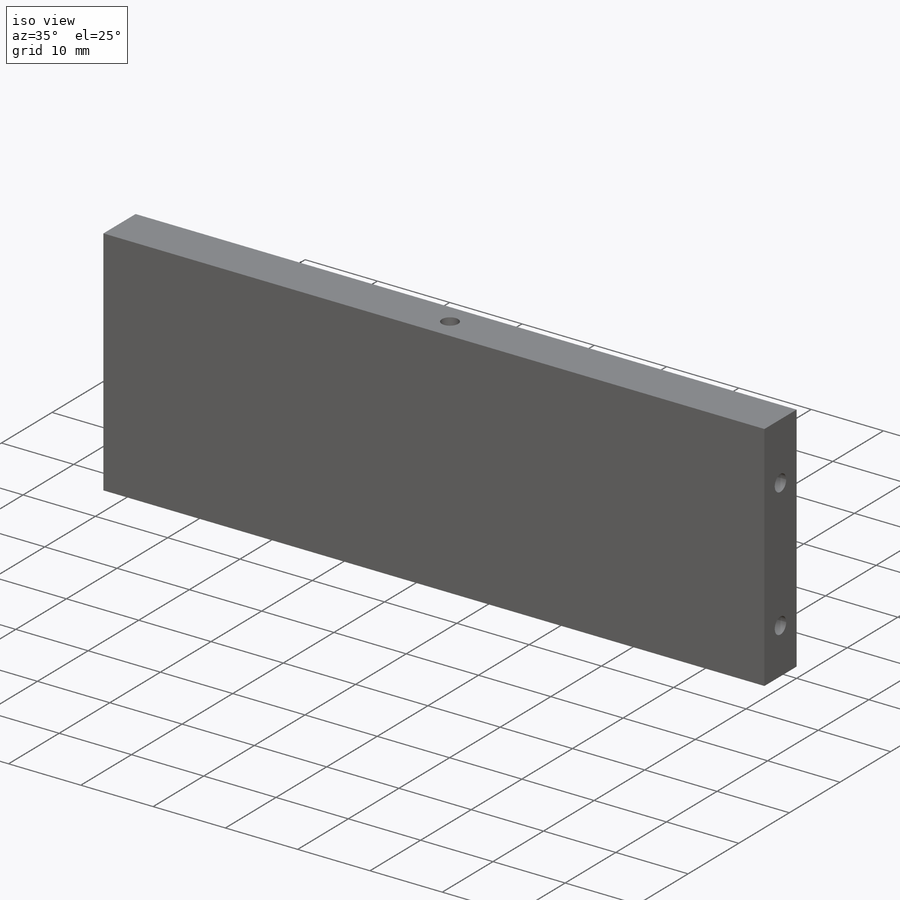
[diagram: iso view]
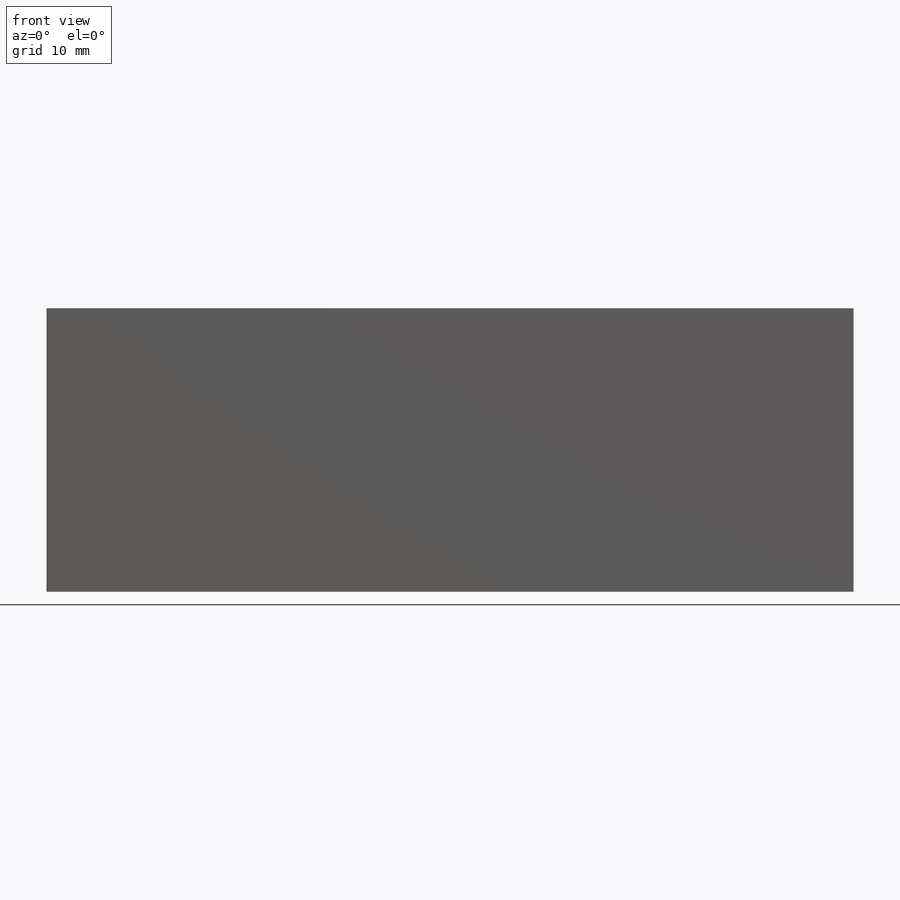
[diagram: front view]
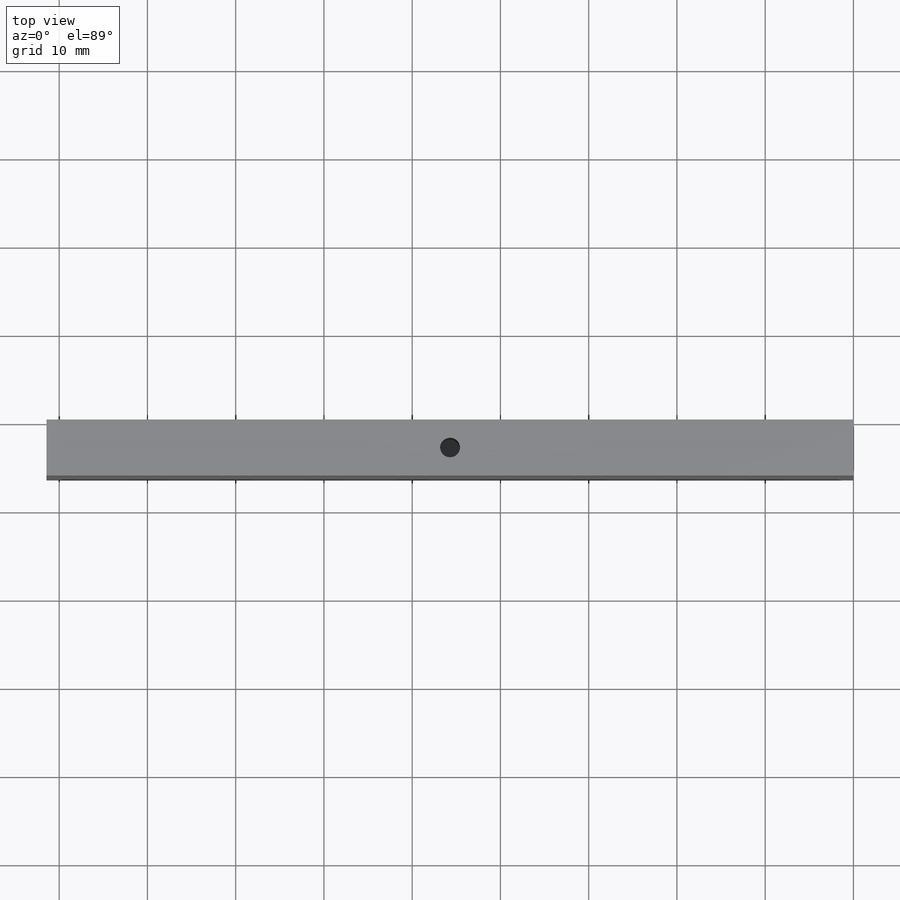
[diagram: top view]
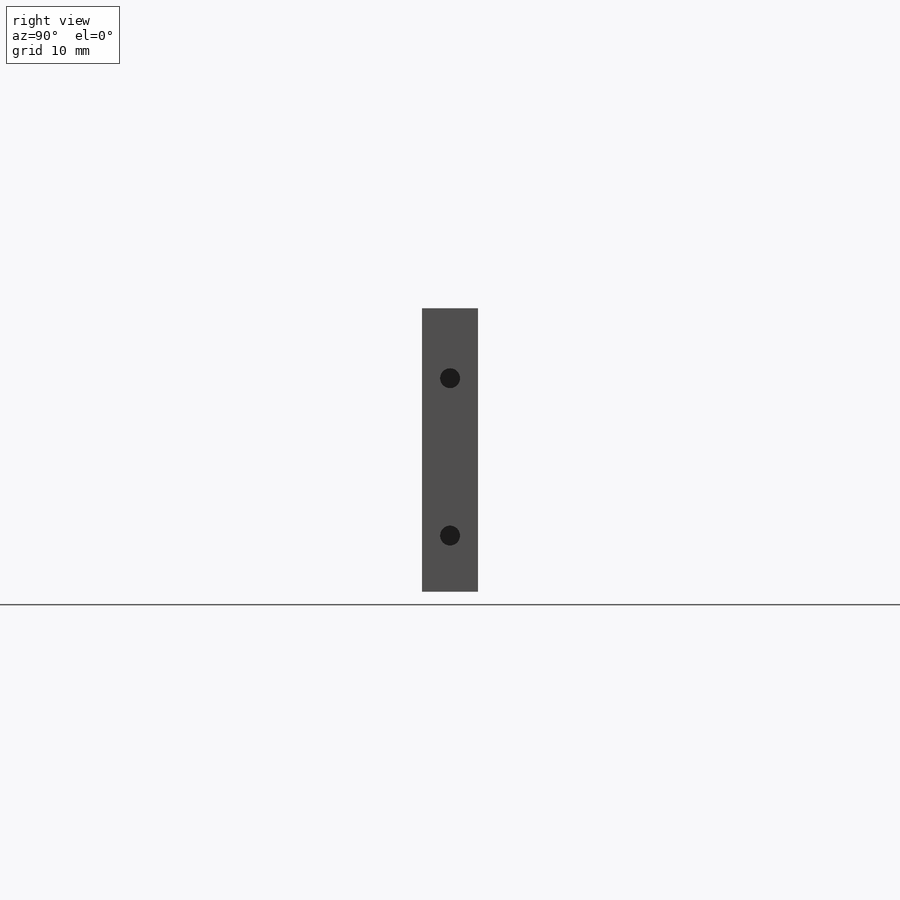
[diagram: right view]
SOLIDWORKS PART (.sldprt)
format: sldprt  version: not decoded by parser v0  size: 293,888 bytes
history: native  units: mm
features: sketch x3, cut_extrude x2, material x1, extrude x1, plane x1, mirror x1 (+11 scaffold rows collapsed)
feature tree (20):
  scaffold x11  (default folders/planes/origin — collapsed)
  material  "Material <not specified>"
  sketch  "Sketch1"  dims[D1=6.35mm D2=91.44mm]
  extrude  "Boss-Extrude1"  Depth=32.131mm
  sketch  "Sketch2"  dims[c1.D3=2.2606mm c1.D2=2.2606mm c1.D1=3.175mm c2.D2=6.35mm]
  cut_extrude  "Cut-Extrude1"  Depth=12.7mm
  plane  "Plane1"
  mirror  "Mirror2"
  sketch  "Sketch3"  dims[D1=2.2606mm D2=3.175mm]
  cut_extrude  "Cut-Extrude2"  Depth=12.7mm
decode coverage: 6 of 7 modeling features carry decoded parameters
note: suppression state not decoded; provenance and decode notes live in map.json
